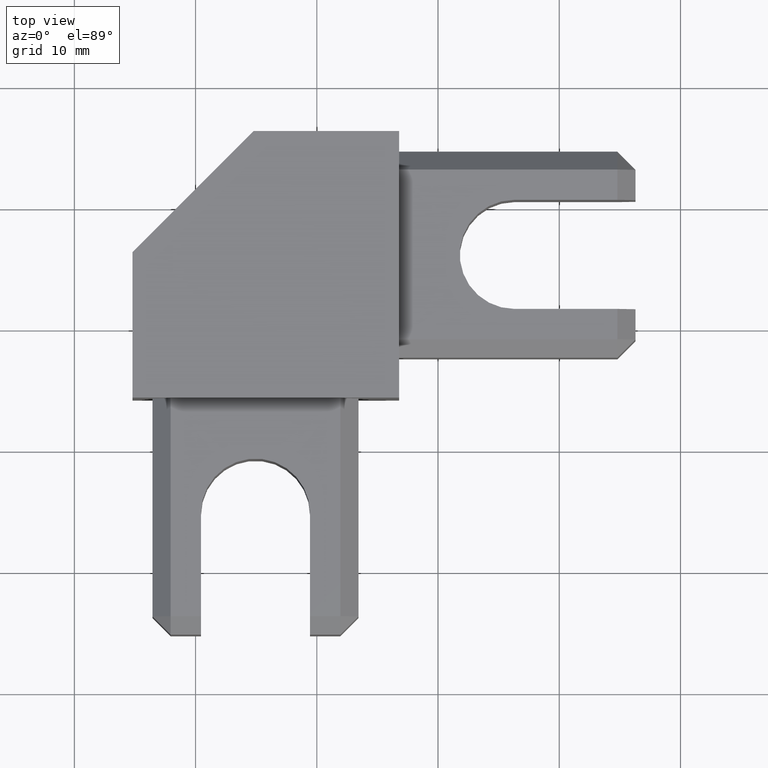
[diagram: clean part render]
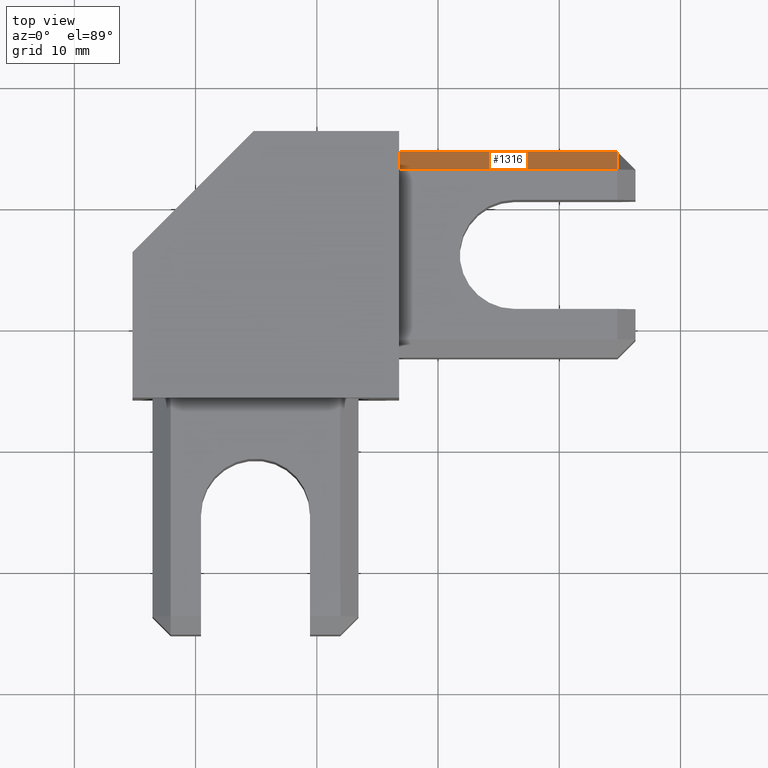
[diagram: same view with one face highlighted and labeled with its STEP entity id]
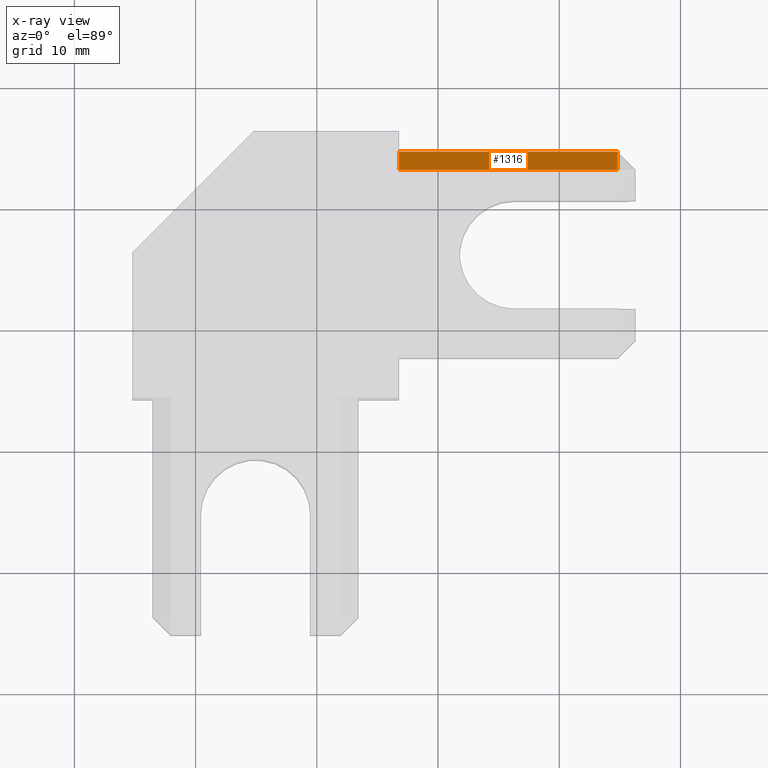
[diagram: x-ray of the same camera — body ghosted, the highlighted face saturated]
A machine part, top view. The second image highlights one B-rep face of the part: STEP entity #1316.
The next image is the same camera in x-ray: the body ghosted, the highlighted face saturated — about 0% of this face is hidden behind the body in this view.
In plain terms, the highlighted planar face has unit normal (-0, -0.7071, -0.7071).
Its self-contained STEP definition (entity closure, byte-faithful):
#6 = CARTESIAN_POINT ( 'NONE',  ( 473.7377064035069900, 413.0950700072845100, 29.20501611203465200 ) ) ;
#13 = LINE ( 'NONE', #37, #1428 ) ;
#14 = DIRECTION ( 'NONE',  ( 1.000000000000000000, -1.779203565104414900E-016, 0.0000000000000000000 ) ) ;
#19 = LINE ( 'NONE', #6, #1417 ) ;
#25 = LINE ( 'NONE', #44, #1437 ) ;
#31 = DIRECTION ( 'NONE',  ( -1.000000000000000000, 1.779203565104414900E-016, 0.0000000000000000000 ) ) ;
#32 = DIRECTION ( 'NONE',  ( -1.991355245087094700E-015, -0.7071067811865489100, 0.7071067811865460200 ) ) ;
#37 = CARTESIAN_POINT ( 'NONE',  ( 506.7937601056900100, 414.5950700072845100, 27.70501611203465200 ) ) ;
#44 = CARTESIAN_POINT ( 'NONE',  ( 524.7937601056900100, 413.0950700072845100, 29.20501611203465200 ) ) ;
#156 = PLANE ( 'NONE',  #1506 ) ;
#181 = CARTESIAN_POINT ( 'NONE',  ( 506.7937601056900100, 414.5950700072845100, 27.70501611203465200 ) ) ;
#183 = FACE_OUTER_BOUND ( 'NONE', #927, .T. ) ;
#198 = DIRECTION ( 'NONE',  ( 0.0000000000000000000, 0.7071067811865489100, -0.7071067811865460200 ) ) ;
#205 = DIRECTION ( 'NONE',  ( -1.258086905996612300E-016, -0.7071067811865461300, -0.7071067811865490200 ) ) ;
#551 = CARTESIAN_POINT ( 'NONE',  ( 506.7937601056900100, 413.8450700072845100, 28.45501611203465200 ) ) ;
#565 = DIRECTION ( 'NONE',  ( -1.579756853552569800E-015, 0.7071067811865489100, -0.7071067811865460200 ) ) ;
#582 = LINE ( 'NONE', #551, #1452 ) ;
#597 = VERTEX_POINT ( 'NONE', #1181 ) ;
#599 = VERTEX_POINT ( 'NONE', #1169 ) ;
#626 = VERTEX_POINT ( 'NONE', #1204 ) ;
#644 = VERTEX_POINT ( 'NONE', #1215 ) ;
#728 = ORIENTED_EDGE ( 'NONE', *, *, #1284, .F. ) ;
#739 = ORIENTED_EDGE ( 'NONE', *, *, #1264, .F. ) ;
#747 = ORIENTED_EDGE ( 'NONE', *, *, #1273, .F. ) ;
#761 = ORIENTED_EDGE ( 'NONE', *, *, #1281, .F. ) ;
#927 = EDGE_LOOP ( 'NONE', ( #739, #761, #747, #728 ) ) ;
#1169 = CARTESIAN_POINT ( 'NONE',  ( 506.7937601056900100, 413.0950700072845100, 29.20501611203465200 ) ) ;
#1181 = CARTESIAN_POINT ( 'NONE',  ( 524.7937601056900100, 413.0950700072845100, 29.20501611203465200 ) ) ;
#1204 = CARTESIAN_POINT ( 'NONE',  ( 506.7937601056900100, 414.5950700072845100, 27.70501611203465200 ) ) ;
#1215 = CARTESIAN_POINT ( 'NONE',  ( 524.7937601056900100, 414.5950700072845100, 27.70501611203465200 ) ) ;
#1264 = EDGE_CURVE ( 'NONE', #599, #626, #582, .T. ) ;
#1273 = EDGE_CURVE ( 'NONE', #644, #597, #25, .T. ) ;
#1281 = EDGE_CURVE ( 'NONE', #597, #599, #19, .T. ) ;
#1284 = EDGE_CURVE ( 'NONE', #626, #644, #13, .T. ) ;
#1316 = ADVANCED_FACE ( 'NONE', ( #183 ), #156, .F. ) ;
#1417 = VECTOR ( 'NONE', #31, 1000.000000000000000 ) ;
#1428 = VECTOR ( 'NONE', #14, 1000.000000000000000 ) ;
#1437 = VECTOR ( 'NONE', #32, 1000.000000000000100 ) ;
#1452 = VECTOR ( 'NONE', #565, 1000.000000000000100 ) ;
#1506 = AXIS2_PLACEMENT_3D ( 'NONE', #181, #205, #198 ) ;